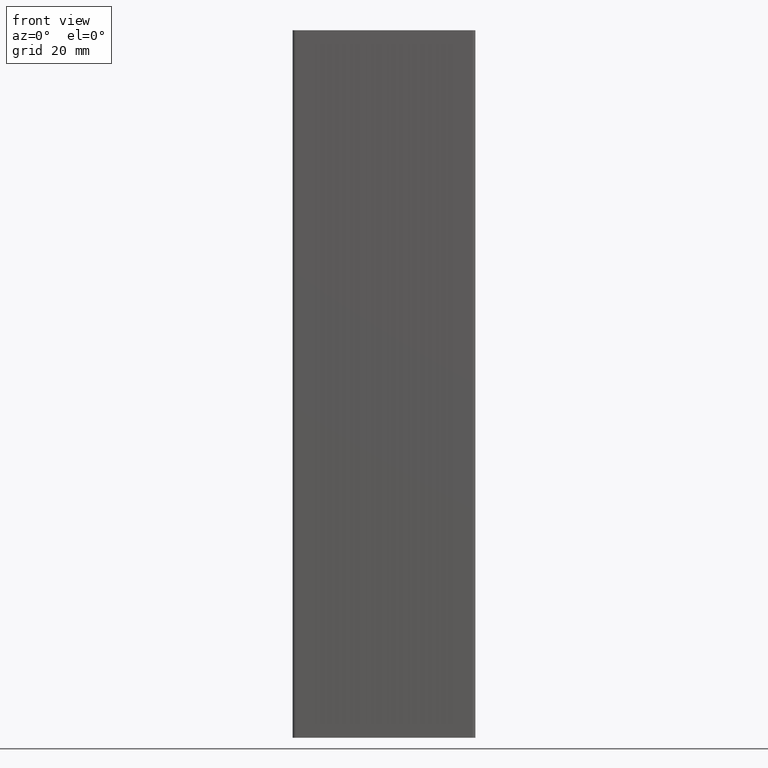
[diagram: clean part render]
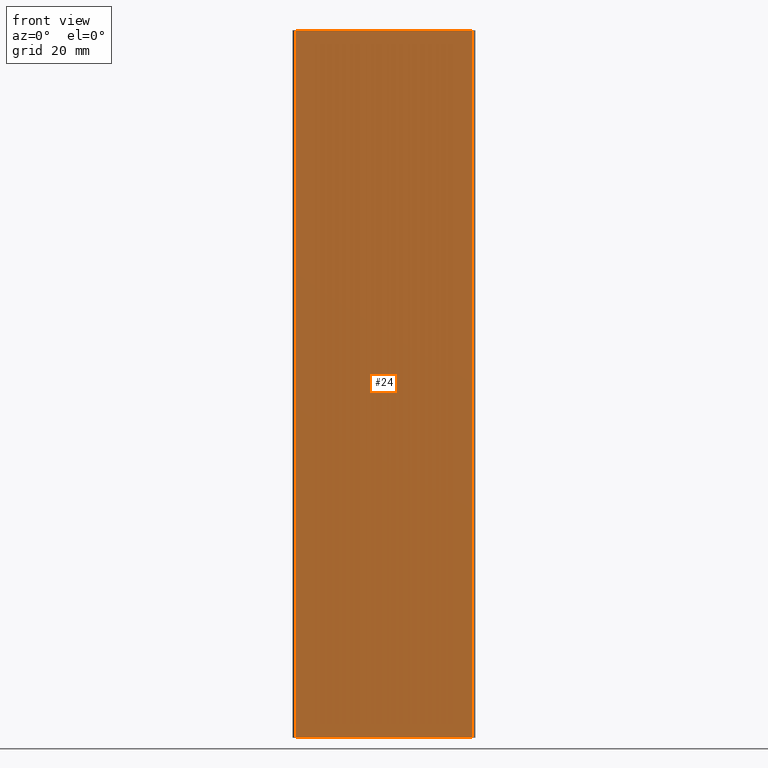
[diagram: same view with one face highlighted and labeled with its STEP entity id]
A machine part, front view. The second image highlights one B-rep face of the part: STEP entity #24.
In plain terms, the highlighted planar face has unit normal (0.0001, 1, -0).
Its self-contained STEP definition (entity closure, byte-faithful):
#5 = EDGE_CURVE ( 'NONE', #283, #241, #304, .T. ) ;
#20 = EDGE_CURVE ( 'NONE', #253, #283, #388, .T. ) ;
#24 = ADVANCED_FACE ( 'NONE', ( #370 ), #348, .F. ) ;
#29 = EDGE_CURVE ( 'NONE', #290, #241, #369, .T. ) ;
#30 = EDGE_CURVE ( 'NONE', #253, #290, #410, .T. ) ;
#77 = VECTOR ( 'NONE', #322, 1000.000000000000100 ) ;
#89 = VECTOR ( 'NONE', #411, 1000.000000000000000 ) ;
#106 = VECTOR ( 'NONE', #414, 1000.000000000000100 ) ;
#122 = VECTOR ( 'NONE', #383, 1000.000000000000000 ) ;
#132 = AXIS2_PLACEMENT_3D ( 'NONE', #382, #344, #373 ) ;
#161 = EDGE_LOOP ( 'NONE', ( #179, #202, #192, #187 ) ) ;
#179 = ORIENTED_EDGE ( 'NONE', *, *, #5, .T. ) ;
#187 = ORIENTED_EDGE ( 'NONE', *, *, #20, .T. ) ;
#192 = ORIENTED_EDGE ( 'NONE', *, *, #30, .F. ) ;
#202 = ORIENTED_EDGE ( 'NONE', *, *, #29, .F. ) ;
#241 = VERTEX_POINT ( 'NONE', #487 ) ;
#253 = VERTEX_POINT ( 'NONE', #481 ) ;
#283 = VERTEX_POINT ( 'NONE', #543 ) ;
#290 = VERTEX_POINT ( 'NONE', #510 ) ;
#304 = LINE ( 'NONE', #339, #77 ) ;
#322 = DIRECTION ( 'NONE',  ( 0.9999999964123750300, -8.470684716574720600E-005, 0.0000000000000000000 ) ) ;
#339 = CARTESIAN_POINT ( 'NONE',  ( 3.689675518239732300E-015, 0.4123778193588880600, 0.0000000000000000000 ) ) ;
#344 = DIRECTION ( 'NONE',  ( 8.470684716574720600E-005, 0.9999999964123750300, -0.0000000000000000000 ) ) ;
#348 = PLANE ( 'NONE',  #132 ) ;
#366 = CARTESIAN_POINT ( 'NONE',  ( 3.689675518239732300E-015, 0.4123778193588880600, 120.0000000000000000 ) ) ;
#369 = LINE ( 'NONE', #378, #89 ) ;
#370 = FACE_OUTER_BOUND ( 'NONE', #161, .T. ) ;
#373 = DIRECTION ( 'NONE',  ( -0.9999999964123750300, 8.470684716574720600E-005, 0.0000000000000000000 ) ) ;
#378 = CARTESIAN_POINT ( 'NONE',  ( 29.99999989237122800, 0.4098366139438910900, 120.0000000000000000 ) ) ;
#382 = CARTESIAN_POINT ( 'NONE',  ( 3.689675518239732300E-015, 0.4123778193588880600, 120.0000000000000000 ) ) ;
#383 = DIRECTION ( 'NONE',  ( -0.0000000000000000000, -0.0000000000000000000, -1.000000000000000000 ) ) ;
#388 = LINE ( 'NONE', #366, #122 ) ;
#395 = CARTESIAN_POINT ( 'NONE',  ( 3.689675518239732300E-015, 0.4123778193588880600, 120.0000000000000000 ) ) ;
#410 = LINE ( 'NONE', #395, #106 ) ;
#411 = DIRECTION ( 'NONE',  ( -0.0000000000000000000, -0.0000000000000000000, -1.000000000000000000 ) ) ;
#414 = DIRECTION ( 'NONE',  ( 0.9999999964123750300, -8.470684716574720600E-005, 0.0000000000000000000 ) ) ;
#481 = CARTESIAN_POINT ( 'NONE',  ( 3.689675518239732300E-015, 0.4123778193588880600, 120.0000000000000000 ) ) ;
#487 = CARTESIAN_POINT ( 'NONE',  ( 29.99999989237122800, 0.4098366139438910900, 0.0000000000000000000 ) ) ;
#510 = CARTESIAN_POINT ( 'NONE',  ( 29.99999989237122800, 0.4098366139438910900, 120.0000000000000000 ) ) ;
#543 = CARTESIAN_POINT ( 'NONE',  ( 3.689675518239732300E-015, 0.4123778193588880600, 0.0000000000000000000 ) ) ;